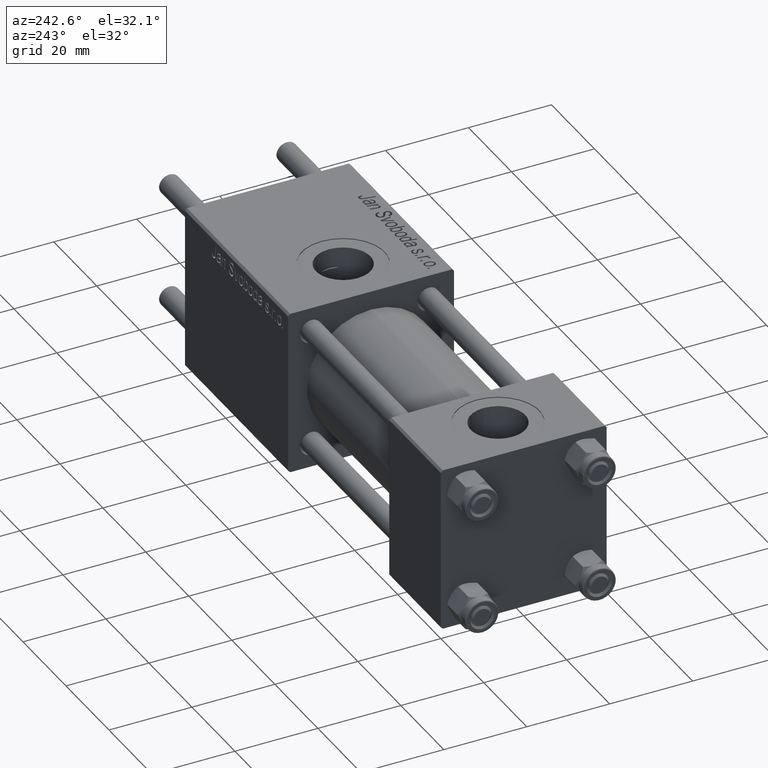
[diagram: clean part render]
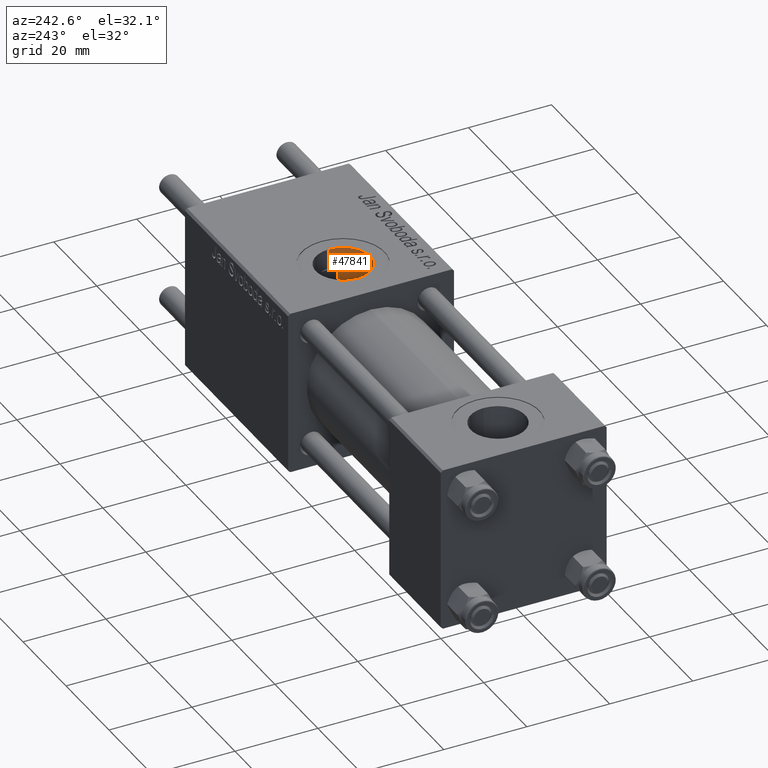
[diagram: same view with one face highlighted and labeled with its STEP entity id]
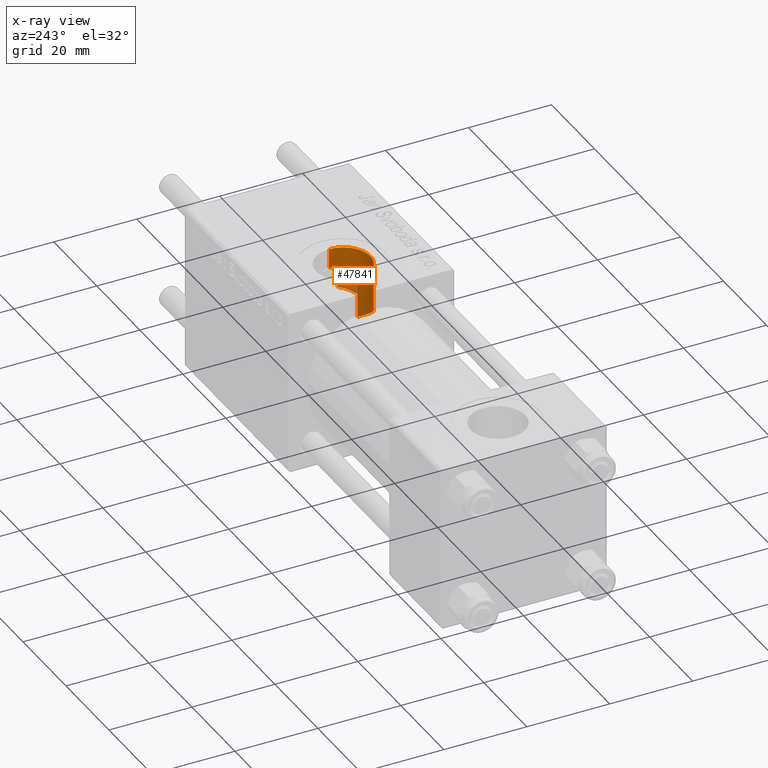
[diagram: x-ray of the same camera — body ghosted, the highlighted face saturated]
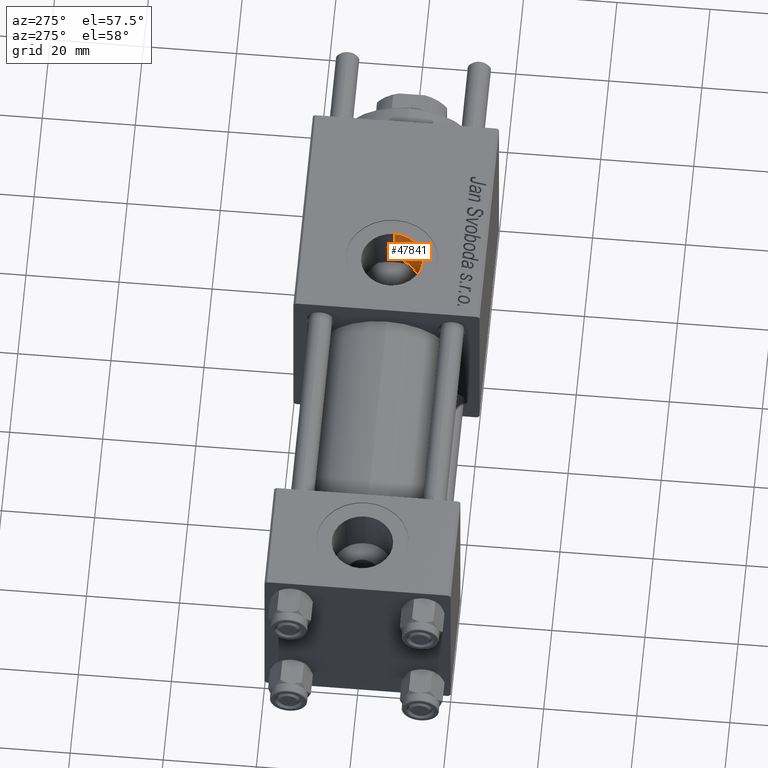
[diagram: same view with one face highlighted and labeled with its STEP entity id]
A machine part, auxiliary view. The second image highlights one B-rep face of the part: STEP entity #47841.
The next image is the same camera in x-ray: the body ghosted, the highlighted face saturated — about 8% of this face is hidden behind the body in this view.
A second angle (auxiliary view) of the same face is appended — the face is thin or edge-on in the first view.
In plain terms, the highlighted cylindrical surface (edge-blend (fillet) strip) has radius 6.58 mm, axis along (0, 0, -1).
Its self-contained STEP definition (entity closure, byte-faithful):
#679 = FACE_OUTER_BOUND ( 'NONE', #15587, .T. ) ;
#962 = CARTESIAN_POINT ( 'NONE',  ( 84.00000000000000000, -1.734723475976806897E-15, 42.80000000000000426 ) ) ;
#1626 = VERTEX_POINT ( 'NONE', #21336 ) ;
#1729 = CARTESIAN_POINT ( 'NONE',  ( 90.18384735178129574, -2.284382302762963501, 9.743491762341799145 ) ) ;
#1801 = AXIS2_PLACEMENT_3D ( 'NONE', #55703, #37662, #8141 ) ;
#1954 = CARTESIAN_POINT ( 'NONE',  ( 90.55605924908761040, -0.6456608678150235203, 14.98945420583744870 ) ) ;
#2018 = CARTESIAN_POINT ( 'NONE',  ( 88.19718467613775204, -5.071121963172631197, 8.619888602053425330 ) ) ;
#2139 = EDGE_CURVE ( 'NONE', #19969, #40926, #14071, .T. ) ;
#3710 = CARTESIAN_POINT ( 'NONE',  ( 83.23563096081821300, -6.538530929802691460, 7.566314066596407706 ) ) ;
#3993 = CARTESIAN_POINT ( 'NONE',  ( 78.57242859662287060, -3.724876030303978069, 9.281895439158068584 ) ) ;
#4829 = EDGE_CURVE ( 'NONE', #1626, #10153, #51236, .T. ) ;
#6333 = CARTESIAN_POINT ( 'NONE',  ( 88.75695250607545006, -4.561896889324866144, 8.903678834413629062 ) ) ;
#6480 = CARTESIAN_POINT ( 'NONE',  ( 90.30000000000001137, -1.899052395280420136, 42.80000000000000426 ) ) ;
#7201 = CARTESIAN_POINT ( 'NONE',  ( 80.48004077057568395, -5.572564248888139282, 8.306509127488531874 ) ) ;
#7374 = LINE ( 'NONE', #15692, #33904 ) ;
#7475 = B_SPLINE_CURVE_WITH_KNOTS ( 'NONE', 3,
 ( #10866, #11441, #1954, #28900, #50961, #45257 ),
 .UNSPECIFIED., .F., .F.,
 ( 4, 2, 4 ),
 ( 0.001923267627926015643, 0.002881828648815649985, 0.003840389669705283893 ),
 .UNSPECIFIED. ) ;
#7483 = CARTESIAN_POINT ( 'NONE',  ( 77.56705469300284506, -1.397686090543303283, 9.903818455115036556 ) ) ;
#8038 = CARTESIAN_POINT ( 'NONE',  ( 77.72104259078042787, -1.977670684214428043, 9.804446867313098224 ) ) ;
#8141 = DIRECTION ( 'NONE',  ( 1.000000000000000000, 0.000000000000000000, 0.000000000000000000 ) ) ;
#8319 = CARTESIAN_POINT ( 'NONE',  ( 80.16020215073048405, -5.356874842517142632, 8.448716332623810388 ) ) ;
#10153 = VERTEX_POINT ( 'NONE', #42428 ) ;
#10866 = CARTESIAN_POINT ( 'NONE',  ( 90.58000000000154728, 1.836897619300433381E-15, 15.00000000000000000 ) ) ;
#11441 = CARTESIAN_POINT ( 'NONE',  ( 90.58000000000156149, -0.3230844264541308797, 14.99999999999999822 ) ) ;
#11781 = CARTESIAN_POINT ( 'NONE',  ( 79.57031396582577543, -4.880372653833860319, 8.732632965334568453 ) ) ;
#14071 = B_SPLINE_CURVE_WITH_KNOTS ( 'NONE', 3,
 ( #23525, #1729, #19229, #36701, #54193, #28101, #6333, #41284, #2018, #19514, #54472, #56448, #50736, #56170, #37845, #29522, #47004, #55884, #20931, #16358, #21203, #16635, #3710, #38676, #29236, #16915, #33814, #38401, #46724, #7201, #8319, #11781, #33536, #46449, #55603, #3993, #51017, #25788, #55325, #34092, #8038, #51298, #7483, #43269, #47275, #25502 ),
 .UNSPECIFIED., .F., .F.,
 ( 4, 2, 2, 2, 2, 2, 2, 2, 2, 2, 2, 2, 2, 2, 2, 2, 2, 2, 2, 2, 2, 2, 4 ),
 ( 0.000000000000000000, 0.001207791230099372441, 0.002415582460198744882, 0.003623373690298115155, 0.004227269305347786631, 0.004831164920397457672, 0.006038956150496800623, 0.006642851765546489880, 0.007246747380596180003, 0.008454538610695601017, 0.009058434225745329305, 0.009662329840795061062, 0.01026622545584479108, 0.01087012107089451937, 0.01207791230099397942, 0.01328570353109343946, 0.01449349476119290124, 0.01509739037624264514, 0.01570128599129239078, 0.01690907722139185429, 0.01751297283644158778, 0.01811686845149132127, 0.01932465968159079173 ),
 .UNSPECIFIED. ) ;
#14384 = CARTESIAN_POINT ( 'NONE',  ( 90.30000000000001137, -1.899052395280420136, 9.818024241158690657 ) ) ;
#14610 = AXIS2_PLACEMENT_3D ( 'NONE', #962, #53412, #49102 ) ;
#15168 = EDGE_CURVE ( 'NONE', #1626, #31522, #36129, .T. ) ;
#15587 = EDGE_LOOP ( 'NONE', ( #33272, #42602, #34200, #38483, #54995, #44324 ) ) ;
#15692 = CARTESIAN_POINT ( 'NONE',  ( 77.41999999999846693, -1.734723475976806897E-15, 42.80000000000000426 ) ) ;
#16358 = CARTESIAN_POINT ( 'NONE',  ( 84.04743762832036680, -6.582974628388996940, 7.527585999843090292 ) ) ;
#16635 = CARTESIAN_POINT ( 'NONE',  ( 83.43610688730976221, -6.558932760434257325, 7.548550817887899278 ) ) ;
#16915 = CARTESIAN_POINT ( 'NONE',  ( 82.25327158685063011, -6.347078162380216604, 7.727766182684421281 ) ) ;
#17118 = EDGE_CURVE ( 'NONE', #31522, #17721, #7475, .T. ) ;
#17721 = VERTEX_POINT ( 'NONE', #42726 ) ;
#19229 = CARTESIAN_POINT ( 'NONE',  ( 90.03601729897108896, -2.648259396322893089, 9.649752199410302822 ) ) ;
#19514 = CARTESIAN_POINT ( 'NONE',  ( 87.89699318866286148, -5.305288046703262594, 8.477775428654018341 ) ) ;
#19969 = VERTEX_POINT ( 'NONE', #14384 ) ;
#20391 = CARTESIAN_POINT ( 'NONE',  ( 90.58000000000154728, 1.836897619300433381E-15, 15.00000000000000000 ) ) ;
#20931 = CARTESIAN_POINT ( 'NONE',  ( 84.65744280686338641, -6.559709605006789346, 7.547889352008899877 ) ) ;
#21203 = CARTESIAN_POINT ( 'NONE',  ( 83.84132420776212768, -6.581215419008478840, 7.529131557805247787 ) ) ;
#21336 = CARTESIAN_POINT ( 'NONE',  ( 90.58000000000154728, -9.289058821376599092E-16, 19.80000000000000071 ) ) ;
#23525 = CARTESIAN_POINT ( 'NONE',  ( 90.30000000000001137, -1.899052395280420136, 9.818024241158690657 ) ) ;
#23693 = DIRECTION ( 'NONE',  ( 0.000000000000000000, 0.000000000000000000, -1.000000000000000000 ) ) ;
#25502 = CARTESIAN_POINT ( 'NONE',  ( 77.41999999999846693, 1.225496641077837722E-15, 9.999999999999998224 ) ) ;
#25788 = CARTESIAN_POINT ( 'NONE',  ( 78.16834223545102134, -3.071777053897142729, 9.522948337697433985 ) ) ;
#28101 = CARTESIAN_POINT ( 'NONE',  ( 89.01171256368644435, -4.281038711601321545, 9.043476487246550732 ) ) ;
#28900 = CARTESIAN_POINT ( 'NONE',  ( 90.46247493449395449, -1.278752734038846484, 14.94875937294843737 ) ) ;
#29236 = CARTESIAN_POINT ( 'NONE',  ( 82.64228046384747017, -6.441510615516904181, 7.649229527461429257 ) ) ;
#29522 = CARTESIAN_POINT ( 'NONE',  ( 85.83530013697877337, -6.321933289868085559, 7.748495657718812879 ) ) ;
#31522 = VERTEX_POINT ( 'NONE', #20391 ) ;
#33272 = ORIENTED_EDGE ( 'NONE', *, *, #4829, .F. ) ;
#33536 = CARTESIAN_POINT ( 'NONE',  ( 79.29730408322323854, -4.618177244596259889, 8.875509752877485781 ) ) ;
#33814 = CARTESIAN_POINT ( 'NONE',  ( 82.06128195139868353, -6.290973204691355569, 7.773687993804112573 ) ) ;
#33904 = VECTOR ( 'NONE', #23693, 1000.000000000000000 ) ;
#34092 = CARTESIAN_POINT ( 'NONE',  ( 77.78468472322818172, -2.169203254887546617, 9.763745855050723677 ) ) ;
#34200 = ORIENTED_EDGE ( 'NONE', *, *, #17118, .T. ) ;
#35065 = CYLINDRICAL_SURFACE ( 'NONE', #14610, 6.580000000001542837 ) ;
#35090 = CARTESIAN_POINT ( 'NONE',  ( 77.41999999999846693, 1.225496641077837722E-15, 9.999999999999998224 ) ) ;
#36129 = LINE ( 'NONE', #54184, #50492 ) ;
#36701 = CARTESIAN_POINT ( 'NONE',  ( 89.68316260257665817, -3.338928794743214468, 9.433056230293079381 ) ) ;
#37662 = DIRECTION ( 'NONE',  ( -0.000000000000000000, -0.000000000000000000, -1.000000000000000000 ) ) ;
#37845 = CARTESIAN_POINT ( 'NONE',  ( 86.21002104074251804, -6.200884946022790167, 7.845702732414576275 ) ) ;
#38401 = CARTESIAN_POINT ( 'NONE',  ( 81.50365122394816808, -6.100731835174567408, 7.925108619061488113 ) ) ;
#38483 = ORIENTED_EDGE ( 'NONE', *, *, #39944, .F. ) ;
#38676 = CARTESIAN_POINT ( 'NONE',  ( 82.83871781191031403, -6.479820246555592966, 7.616654439233103702 ) ) ;
#39944 = EDGE_CURVE ( 'NONE', #19969, #17721, #46028, .T. ) ;
#40926 = VERTEX_POINT ( 'NONE', #35090 ) ;
#41284 = CARTESIAN_POINT ( 'NONE',  ( 88.34134544482054707, -4.948221379670047604, 8.691185487698470880 ) ) ;
#42428 = CARTESIAN_POINT ( 'NONE',  ( 77.41999999999846693, -1.734723475976806897E-15, 19.80000000000000071 ) ) ;
#42602 = ORIENTED_EDGE ( 'NONE', *, *, #15168, .T. ) ;
#42726 = CARTESIAN_POINT ( 'NONE',  ( 90.30000000000001137, -1.899052395280420136, 14.87930105885285670 ) ) ;
#43269 = CARTESIAN_POINT ( 'NONE',  ( 77.45763783829498550, -0.8084208477571691587, 9.975121118623741623 ) ) ;
#44324 = ORIENTED_EDGE ( 'NONE', *, *, #55522, .F. ) ;
#45257 = CARTESIAN_POINT ( 'NONE',  ( 90.30000000000001137, -1.899052395280420136, 14.87930105885285670 ) ) ;
#46028 = LINE ( 'NONE', #6480, #46409 ) ;
#46409 = VECTOR ( 'NONE', #50310, 1000.000000000000000 ) ;
#46449 = CARTESIAN_POINT ( 'NONE',  ( 78.91948560029506154, -4.185857250486422210, 9.083179932574980242 ) ) ;
#46724 = CARTESIAN_POINT ( 'NONE',  ( 81.15150766959031614, -5.943877247083126925, 8.044991576418468071 ) ) ;
#47004 = CARTESIAN_POINT ( 'NONE',  ( 85.64143006621837628, -6.375121249720390182, 7.704616833470068649 ) ) ;
#47275 = CARTESIAN_POINT ( 'NONE',  ( 77.41999999999848114, -0.4081853129699585803, 10.00000000000000711 ) ) ;
#47841 = ADVANCED_FACE ( 'NONE', ( #679 ), #35065, .F. ) ;
#49102 = DIRECTION ( 'NONE',  ( -1.000000000000000000, 0.000000000000000000, 0.000000000000000000 ) ) ;
#50310 = DIRECTION ( 'NONE',  ( -0.000000000000000000, -0.000000000000000000, 1.000000000000000000 ) ) ;
#50492 = VECTOR ( 'NONE', #53623, 1000.000000000000000 ) ;
#50736 = CARTESIAN_POINT ( 'NONE',  ( 86.92434068310684836, -5.907044672534588869, 8.071096920454994716 ) ) ;
#50961 = CARTESIAN_POINT ( 'NONE',  ( 90.39284622331669539, -1.591040247564623700, 14.91861279833453757 ) ) ;
#51017 = CARTESIAN_POINT ( 'NONE',  ( 78.46622740148208663, -3.565203004854784474, 9.344512687240586146 ) ) ;
#51236 = CIRCLE ( 'NONE', #1801, 6.580000000001542837 ) ;
#51298 = CARTESIAN_POINT ( 'NONE',  ( 77.61241581301695192, -1.592248641449762747, 9.874366003595781649 ) ) ;
#53412 = DIRECTION ( 'NONE',  ( 0.000000000000000000, 0.000000000000000000, -1.000000000000000000 ) ) ;
#53623 = DIRECTION ( 'NONE',  ( 0.000000000000000000, 0.000000000000000000, -1.000000000000000000 ) ) ;
#54184 = CARTESIAN_POINT ( 'NONE',  ( 90.58000000000154728, -9.289058821376597120E-16, 42.80000000000000426 ) ) ;
#54193 = CARTESIAN_POINT ( 'NONE',  ( 89.47667727346387778, -3.667500690329295931, 9.309199649381490360 ) ) ;
#54472 = CARTESIAN_POINT ( 'NONE',  ( 87.74050804270864035, -5.416766998257490862, 8.406790300727948306 ) ) ;
#54995 = ORIENTED_EDGE ( 'NONE', *, *, #2139, .T. ) ;
#55325 = CARTESIAN_POINT ( 'NONE',  ( 77.99714712711040931, -2.723766581249583485, 9.629423614267258458 ) ) ;
#55522 = EDGE_CURVE ( 'NONE', #10153, #40926, #7374, .T. ) ;
#55603 = CARTESIAN_POINT ( 'NONE',  ( 78.79875737437667738, -4.034886358906389248, 9.151392050136836431 ) ) ;
#55703 = CARTESIAN_POINT ( 'NONE',  ( 84.00000000000000000, -1.734723475976806897E-15, 19.80000000000000071 ) ) ;
#55884 = CARTESIAN_POINT ( 'NONE',  ( 85.05563542025694801, -6.507095227759212008, 7.594134426896898660 ) ) ;
#56170 = CARTESIAN_POINT ( 'NONE',  ( 86.39211994537743067, -6.132805105780794186, 7.899218132206713427 ) ) ;
#56448 = CARTESIAN_POINT ( 'NONE',  ( 87.26053252520590320, -5.728070196491263921, 8.200680661955367157 ) ) ;